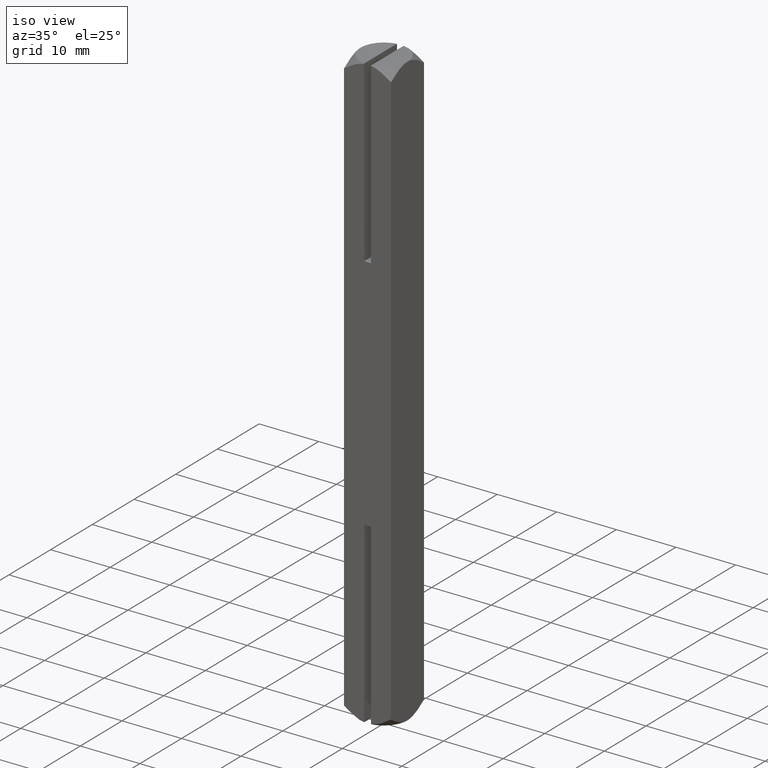
[diagram: clean part render]
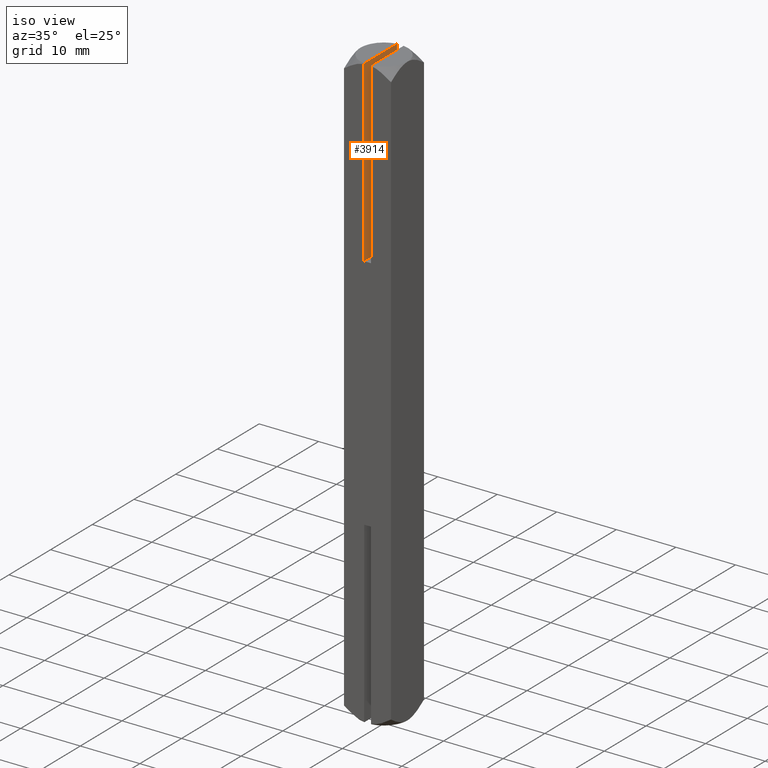
[diagram: same view with one face highlighted and labeled with its STEP entity id]
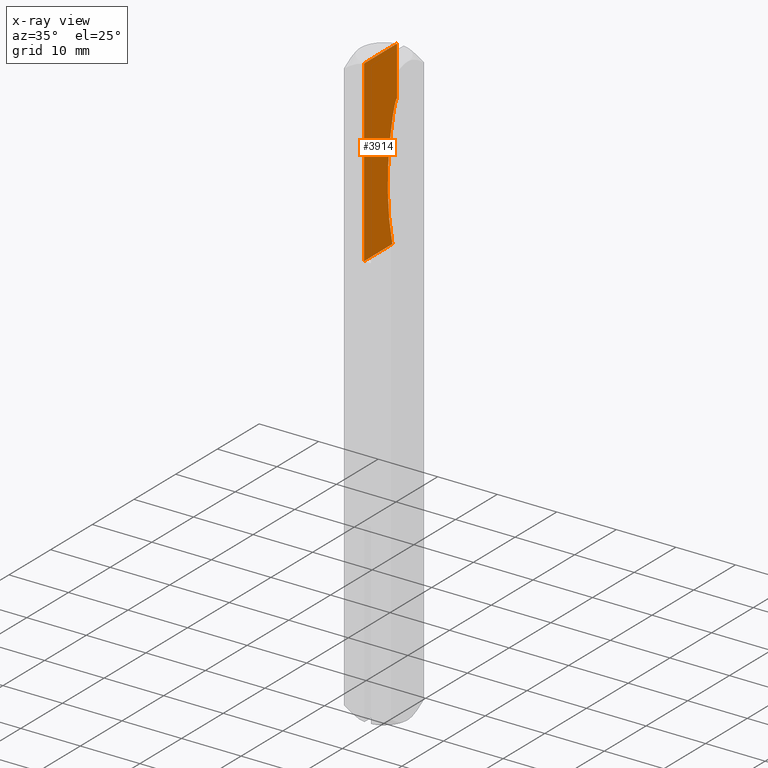
[diagram: x-ray of the same camera — body ghosted, the highlighted face saturated]
A machine part, iso view. The second image highlights one B-rep face of the part: STEP entity #3914.
The next image is the same camera in x-ray: the body ghosted, the highlighted face saturated — about 0% of this face is hidden behind the body in this view.
In plain terms, the highlighted planar face has unit normal (-1, -0, 0).
Its self-contained STEP definition (entity closure, byte-faithful):
#345 = CARTESIAN_POINT ( 'NONE',  ( -0.5750000000000005107, 1.797053306296788167, 32.00469167351272404 ) ) ;
#403 = ORIENTED_EDGE ( 'NONE', *, *, #4448, .T. ) ;
#422 = CARTESIAN_POINT ( 'NONE',  ( -0.5750000000000003997, 3.423725090174374763, 40.95122227692382921 ) ) ;
#465 = CARTESIAN_POINT ( 'NONE',  ( -0.5750000000000001776, 1.713741310024385456, 29.21709193567127016 ) ) ;
#584 = CARTESIAN_POINT ( 'NONE',  ( -0.5749999999999992895, -3.907924641033908575, 50.00000000000000000 ) ) ;
#586 = VECTOR ( 'NONE', #3510, 1000.000000000000000 ) ;
#895 = ORIENTED_EDGE ( 'NONE', *, *, #1096, .F. ) ;
#1096 = EDGE_CURVE ( 'NONE', #6030, #2003, #2985, .T. ) ;
#1120 = CARTESIAN_POINT ( 'NONE',  ( -0.5749999999999992895, -3.949999999990744026, 49.95836812820535044 ) ) ;
#1315 = CARTESIAN_POINT ( 'NONE',  ( -0.5750000000000000666, 2.656006524776936217, 38.31868199677725073 ) ) ;
#1351 = CARTESIAN_POINT ( 'NONE',  ( -0.5750000000000001776, 1.898099659623143420, 33.37009079281760648 ) ) ;
#1378 = CARTESIAN_POINT ( 'NONE',  ( -0.5750000000000001776, 2.119995233940013435, 23.65323532807944673 ) ) ;
#1504 = CARTESIAN_POINT ( 'NONE',  ( -0.5750000000000002887, 3.907924641033908575, 50.00000000000000000 ) ) ;
#1547 = CARTESIAN_POINT ( 'NONE',  ( -0.5749999999999999556, 3.949999999999999734, 49.95836812819619155 ) ) ;
#1567 = CARTESIAN_POINT ( 'NONE',  ( -0.5750000000000010658, 10.00000000000000000, 50.00000000000000000 ) ) ;
#1600 = CARTESIAN_POINT ( 'NONE',  ( -0.5749999999999999556, 3.949999999999999734, 50.00000000000000000 ) ) ;
#1677 = CARTESIAN_POINT ( 'NONE',  ( -0.5749999999999990674, -3.950000000000000178, 50.00000000000000000 ) ) ;
#1837 = VERTEX_POINT ( 'NONE', #1547 ) ;
#1977 = VERTEX_POINT ( 'NONE', #9986 ) ;
#2003 = VERTEX_POINT ( 'NONE', #1120 ) ;
#2240 = VECTOR ( 'NONE', #5919, 1000.000000000000000 ) ;
#2244 = CARTESIAN_POINT ( 'NONE',  ( -0.5750000000000002887, 3.838175792654273000, 41.63303785578739280 ) ) ;
#2293 = CARTESIAN_POINT ( 'NONE',  ( -0.5750000000000002887, 3.123804794351551450, 40.08805091065506332 ) ) ;
#2985 = LINE ( 'NONE', #1677, #586 ) ;
#3031 = CARTESIAN_POINT ( 'NONE',  ( -0.5750000000000000666, 1.717738489092452525, 30.14765667200343913 ) ) ;
#3143 = CARTESIAN_POINT ( 'NONE',  ( -0.5750000000000000666, 2.038517818991956609, 34.72960835983197825 ) ) ;
#3171 = CARTESIAN_POINT ( 'NONE',  ( -0.5749999999999999556, 2.999569653012168935, 39.64785277818430131 ) ) ;
#3370 = VECTOR ( 'NONE', #4367, 1000.000000000000000 ) ;
#3392 = CARTESIAN_POINT ( 'NONE',  ( -0.5750000000000010658, 10.00000000000000000, 20.00000000000000355 ) ) ;
#3510 = DIRECTION ( 'NONE',  ( 0.000000000000000000, 0.000000000000000000, 1.000000000000000000 ) ) ;
#3811 = VERTEX_POINT ( 'NONE', #7921 ) ;
#3914 = ADVANCED_FACE ( 'NONE', ( #8439 ), #9847, .F. ) ;
#3964 = DIRECTION ( 'NONE',  ( -1.000000000000000000, -1.246832498358330099E-16, 0.000000000000000000 ) ) ;
#4031 = CARTESIAN_POINT ( 'NONE',  ( -0.5750000000000000666, 3.892085402762736734, 41.66519112057047636 ) ) ;
#4076 = CARTESIAN_POINT ( 'NONE',  ( -0.5750000000000002887, 3.950000000000557066, 41.66519112057266483 ) ) ;
#4187 = CARTESIAN_POINT ( 'NONE',  ( -0.5749999999999992895, -3.935975653505235705, 49.97224620373858528 ) ) ;
#4324 = ORIENTED_EDGE ( 'NONE', *, *, #8501, .F. ) ;
#4367 = DIRECTION ( 'NONE',  ( 1.246832498358330099E-16, -1.000000000000000000, 0.000000000000000000 ) ) ;
#4448 = EDGE_CURVE ( 'NONE', #1977, #5859, #10966, .T. ) ;
#4885 = ORIENTED_EDGE ( 'NONE', *, *, #7195, .F. ) ;
#4926 = CARTESIAN_POINT ( 'NONE',  ( -0.5750000000000002887, 1.818738552955122989, 32.34657570468970533 ) ) ;
#4931 = EDGE_CURVE ( 'NONE', #3811, #11488, #5597, .T. ) ;
#5155 = CARTESIAN_POINT ( 'NONE',  ( -0.5749999999999992895, -3.949999999990744026, 49.95836812820535044 ) ) ;
#5597 = B_SPLINE_CURVE_WITH_KNOTS ( 'NONE', 3,
 ( #4076, #4031, #2244, #11169, #8452, #9407, #7547, #422, #6691, #2293, #3171, #1315, #8520, #10192, #3143, #1351, #10308, #4926, #9294, #345, #11098, #6627, #11212, #3031, #465, #7510, #6736, #6581, #1378, #7627, #9451, #10337 ),
 .UNSPECIFIED., .F., .F.,
 ( 4, 2, 2, 2, 2, 2, 2, 2, 2, 2, 2, 2, 2, 2, 2, 4 ),
 ( 0.04013997765228428938, 0.04031446014983714604, 0.04048894264739000270, 0.04083790764249572297, 0.04153583763270715656, 0.04293169761313001681, 0.04572341757397576506, 0.04851513753482152025, 0.04991099751524438743, 0.05025996251035010076, 0.05060892750545581409, 0.05130685749566724074, 0.05409857745651294042, 0.05689029741735863316, 0.05968201737820433284, 0.06247373733905002557 ),
 .UNSPECIFIED. ) ;
#5781 = CARTESIAN_POINT ( 'NONE',  ( -0.5750000000000010658, 10.00000000000000000, 20.00000000000000355 ) ) ;
#5859 = VERTEX_POINT ( 'NONE', #8609 ) ;
#5919 = DIRECTION ( 'NONE',  ( 0.000000000000000000, 0.000000000000000000, -1.000000000000000000 ) ) ;
#5985 = CARTESIAN_POINT ( 'NONE',  ( -0.5750000000000002887, 3.935975654315071459, 49.97224620293719255 ) ) ;
#6030 = VERTEX_POINT ( 'NONE', #8055 ) ;
#6301 = LINE ( 'NONE', #1600, #2240 ) ;
#6581 = CARTESIAN_POINT ( 'NONE',  ( -0.5750000000000000666, 2.001035175949065437, 24.57484465062620060 ) ) ;
#6627 = CARTESIAN_POINT ( 'NONE',  ( -0.5750000000000001776, 1.771722377317427322, 31.54329966053413159 ) ) ;
#6691 = CARTESIAN_POINT ( 'NONE',  ( -0.5750000000000000666, 3.345022024219240997, 40.73665252974367235 ) ) ;
#6736 = CARTESIAN_POINT ( 'NONE',  ( -0.5750000000000001776, 1.824528500665346886, 26.42545832768125535 ) ) ;
#6752 = B_SPLINE_CURVE_WITH_KNOTS ( 'NONE', 3,
 ( #1504, #9488, #5985, #10389 ),
 .UNSPECIFIED., .F., .F.,
 ( 4, 4 ),
 ( 0.004623978623840036863, 0.004683130948698034819 ),
 .UNSPECIFIED. ) ;
#6822 = B_SPLINE_CURVE_WITH_KNOTS ( 'NONE', 3,
 ( #5155, #4187, #11295, #584 ),
 .UNSPECIFIED., .F., .F.,
 ( 4, 4 ),
 ( 0.004611646260380576103, 0.004670836886331646357 ),
 .UNSPECIFIED. ) ;
#7195 = EDGE_CURVE ( 'NONE', #1837, #3811, #6301, .T. ) ;
#7404 = LINE ( 'NONE', #3392, #3370 ) ;
#7510 = CARTESIAN_POINT ( 'NONE',  ( -0.5750000000000001776, 1.767104975694737679, 27.35570147856964951 ) ) ;
#7547 = CARTESIAN_POINT ( 'NONE',  ( -0.5750000000000002887, 3.568300370325551807, 41.26436420200637656 ) ) ;
#7627 = CARTESIAN_POINT ( 'NONE',  ( -0.5750000000000000666, 2.423546255826428020, 21.81791955638477276 ) ) ;
#7921 = CARTESIAN_POINT ( 'NONE',  ( -0.5750000000000002887, 3.950000000000557066, 41.66519112057266483 ) ) ;
#8055 = CARTESIAN_POINT ( 'NONE',  ( -0.5749999999999992895, -3.950000000000000178, 20.00000000000000355 ) ) ;
#8370 = EDGE_LOOP ( 'NONE', ( #10381, #11426, #4885, #4324, #403, #9117, #895 ) ) ;
#8439 = FACE_OUTER_BOUND ( 'NONE', #8370, .T. ) ;
#8452 = CARTESIAN_POINT ( 'NONE',  ( -0.5750000000000003997, 3.716727400158926997, 41.50931508105428236 ) ) ;
#8501 = EDGE_CURVE ( 'NONE', #1977, #1837, #6752, .T. ) ;
#8520 = CARTESIAN_POINT ( 'NONE',  ( -0.5750000000000001776, 2.471219910511959661, 37.42595704450668848 ) ) ;
#8562 = VECTOR ( 'NONE', #9597, 1000.000000000000000 ) ;
#8609 = CARTESIAN_POINT ( 'NONE',  ( -0.5749999999999992895, -3.907924641033908575, 50.00000000000000000 ) ) ;
#9117 = ORIENTED_EDGE ( 'NONE', *, *, #9767, .F. ) ;
#9294 = CARTESIAN_POINT ( 'NONE',  ( -0.5750000000000002887, 1.811202399092227244, 32.23266033241277029 ) ) ;
#9326 = DIRECTION ( 'NONE',  ( 1.246832498358330099E-16, -1.000000000000000000, 0.000000000000000000 ) ) ;
#9407 = CARTESIAN_POINT ( 'NONE',  ( -0.5750000000000005107, 3.620210601659142213, 41.36696449408719189 ) ) ;
#9451 = CARTESIAN_POINT ( 'NONE',  ( -0.5750000000000001776, 2.607124633328429475, 20.90289993090307519 ) ) ;
#9488 = CARTESIAN_POINT ( 'NONE',  ( -0.5750000000000002887, 3.921950537753111643, 49.98612350698697071 ) ) ;
#9551 = CARTESIAN_POINT ( 'NONE',  ( -0.5750000000000001776, 2.832976762361322898, 20.00000000000000355 ) ) ;
#9597 = DIRECTION ( 'NONE',  ( 1.246832498358330099E-16, -1.000000000000000000, 0.000000000000000000 ) ) ;
#9767 = EDGE_CURVE ( 'NONE', #2003, #5859, #6822, .T. ) ;
#9847 = PLANE ( 'NONE',  #10632 ) ;
#9986 = CARTESIAN_POINT ( 'NONE',  ( -0.5750000000000002887, 3.907924641033908575, 50.00000000000000000 ) ) ;
#10192 = CARTESIAN_POINT ( 'NONE',  ( -0.5750000000000001776, 2.161638308738178527, 35.63154529835278339 ) ) ;
#10308 = CARTESIAN_POINT ( 'NONE',  ( -0.5750000000000001776, 1.858727775207912103, 32.91580771812270001 ) ) ;
#10337 = CARTESIAN_POINT ( 'NONE',  ( -0.5750000000000001776, 2.832976762361322898, 20.00000000000000355 ) ) ;
#10381 = ORIENTED_EDGE ( 'NONE', *, *, #10543, .F. ) ;
#10389 = CARTESIAN_POINT ( 'NONE',  ( -0.5749999999999999556, 3.949999999999999734, 49.95836812819619155 ) ) ;
#10543 = EDGE_CURVE ( 'NONE', #11488, #6030, #7404, .T. ) ;
#10632 = AXIS2_PLACEMENT_3D ( 'NONE', #5781, #3964, #9326 ) ;
#10966 = LINE ( 'NONE', #1567, #8562 ) ;
#11098 = CARTESIAN_POINT ( 'NONE',  ( -0.5750000000000002887, 1.790522158601205227, 31.89218784807994922 ) ) ;
#11169 = CARTESIAN_POINT ( 'NONE',  ( -0.5750000000000001776, 3.752541703626187886, 41.55570475752237058 ) ) ;
#11212 = CARTESIAN_POINT ( 'NONE',  ( -0.5750000000000001776, 1.761122091421702285, 31.31069931396687878 ) ) ;
#11295 = CARTESIAN_POINT ( 'NONE',  ( -0.5749999999999992895, -3.921950531116518590, 49.98612351355284744 ) ) ;
#11426 = ORIENTED_EDGE ( 'NONE', *, *, #4931, .F. ) ;
#11488 = VERTEX_POINT ( 'NONE', #9551 ) ;